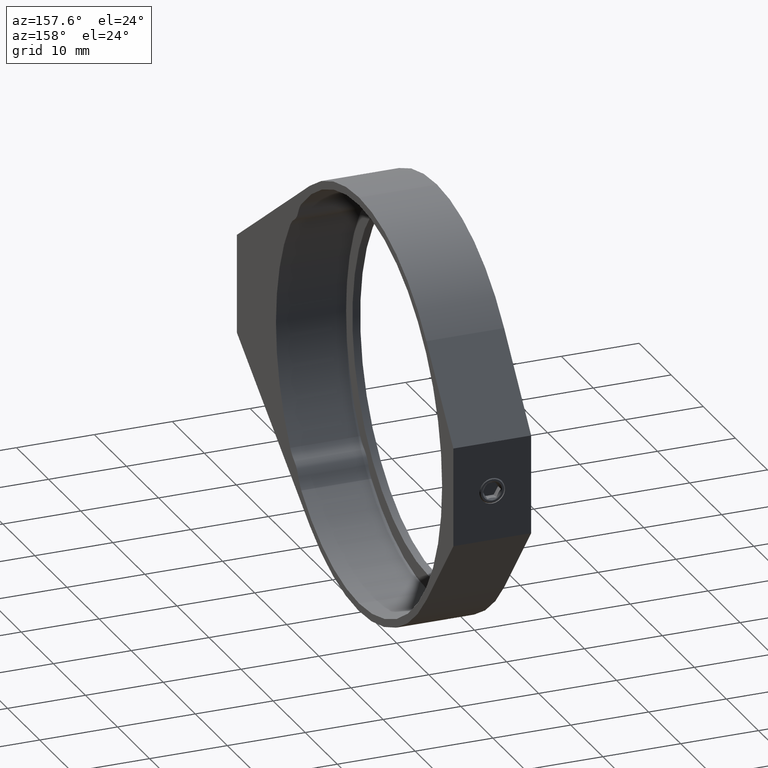
[diagram: clean part render]
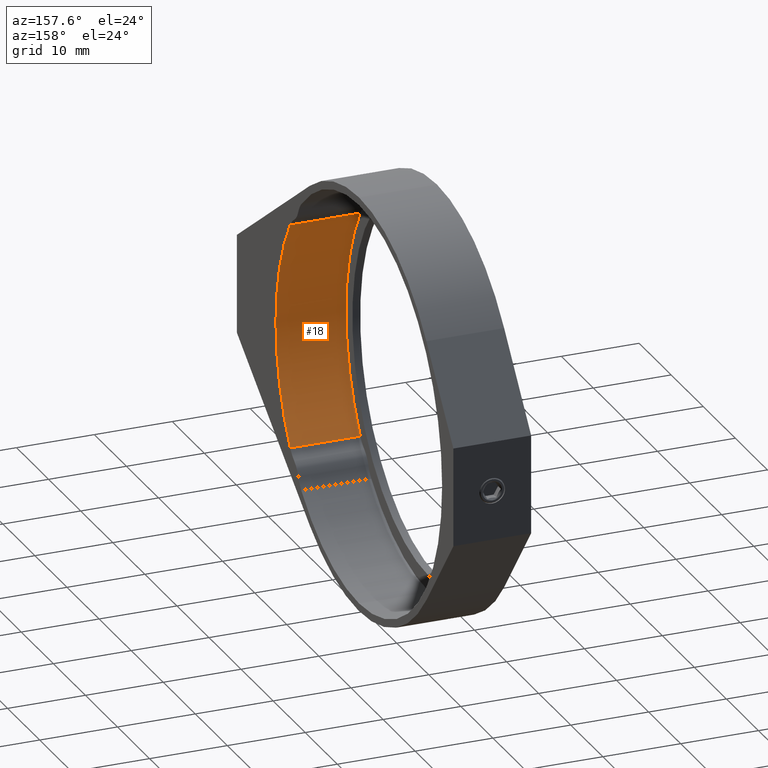
[diagram: same view with one face highlighted and labeled with its STEP entity id]
A machine part, auxiliary view. The second image highlights one B-rep face of the part: STEP entity #18.
In plain terms, the highlighted cylindrical surface (partial cylindrical patch) has radius 25.9 mm, axis along (1, -0, -0).
Its self-contained STEP definition (entity closure, byte-faithful):
#18 = ADVANCED_FACE ( 'NONE', ( #683 ), #599, .F. ) ;
#28 = VECTOR ( 'NONE', #172, 1000.000000000000000 ) ;
#29 = CIRCLE ( 'NONE', #522, 25.90000000000000568 ) ;
#88 = VERTEX_POINT ( 'NONE', #781 ) ;
#103 = CARTESIAN_POINT ( 'NONE',  ( -86.15498967708690259, 2.372471910112824212, 67.49999999999998579 ) ) ;
#123 = ORIENTED_EDGE ( 'NONE', *, *, #330, .T. ) ;
#172 = DIRECTION ( 'NONE',  ( 1.000000000000000000, -0.0000000000000000000, -0.0000000000000000000 ) ) ;
#189 = DIRECTION ( 'NONE',  ( 0.0000000000000000000, 0.0000000000000000000, -1.000000000000000000 ) ) ;
#207 = CARTESIAN_POINT ( 'NONE',  ( -8.303370786516859781, -19.09241679163501360, 53.00625814285425008 ) ) ;
#330 = EDGE_CURVE ( 'NONE', #1150, #88, #515, .T. ) ;
#377 = VECTOR ( 'NONE', #1461, 1000.000000000000000 ) ;
#515 = LINE ( 'NONE', #979, #377 ) ;
#522 = AXIS2_PLACEMENT_3D ( 'NONE', #730, #1349, #1198 ) ;
#549 = ORIENTED_EDGE ( 'NONE', *, *, #991, .T. ) ;
#550 = VERTEX_POINT ( 'NONE', #1169 ) ;
#575 = DIRECTION ( 'NONE',  ( 1.000000000000000000, -0.0000000000000000000, -0.0000000000000000000 ) ) ;
#599 = CYLINDRICAL_SURFACE ( 'NONE', #1229, 25.90000000000000568 ) ;
#654 = CARTESIAN_POINT ( 'NONE',  ( -8.303370786516859781, 2.372471910112824212, 67.49999999999998579 ) ) ;
#683 = FACE_OUTER_BOUND ( 'NONE', #736, .T. ) ;
#730 = CARTESIAN_POINT ( 'NONE',  ( -17.30337078651686511, 2.372471910112824212, 67.49999999999998579 ) ) ;
#736 = EDGE_LOOP ( 'NONE', ( #930, #123, #549, #1059 ) ) ;
#747 = EDGE_CURVE ( 'NONE', #550, #1414, #1189, .T. ) ;
#781 = CARTESIAN_POINT ( 'NONE',  ( -17.30337078651686511, -19.09241679163501360, 53.00625814285425008 ) ) ;
#854 = CARTESIAN_POINT ( 'NONE',  ( -8.303370786516859781, -19.09241679163502781, 81.99374185714570729 ) ) ;
#868 = AXIS2_PLACEMENT_3D ( 'NONE', #654, #883, #189 ) ;
#883 = DIRECTION ( 'NONE',  ( 1.000000000000000000, -0.0000000000000000000, 0.0000000000000000000 ) ) ;
#930 = ORIENTED_EDGE ( 'NONE', *, *, #1531, .T. ) ;
#979 = CARTESIAN_POINT ( 'NONE',  ( -86.15498967708690259, -19.09241679163501360, 53.00625814285425008 ) ) ;
#991 = EDGE_CURVE ( 'NONE', #88, #550, #29, .T. ) ;
#1039 = DIRECTION ( 'NONE',  ( 0.0000000000000000000, 0.0000000000000000000, -1.000000000000000000 ) ) ;
#1059 = ORIENTED_EDGE ( 'NONE', *, *, #747, .T. ) ;
#1150 = VERTEX_POINT ( 'NONE', #207 ) ;
#1169 = CARTESIAN_POINT ( 'NONE',  ( -17.30337078651686511, -19.09241679163502781, 81.99374185714570729 ) ) ;
#1189 = LINE ( 'NONE', #1227, #28 ) ;
#1198 = DIRECTION ( 'NONE',  ( 0.0000000000000000000, 8.874550601039647974E-16, -1.000000000000000000 ) ) ;
#1227 = CARTESIAN_POINT ( 'NONE',  ( -86.15498967708690259, -19.09241679163502781, 81.99374185714570729 ) ) ;
#1229 = AXIS2_PLACEMENT_3D ( 'NONE', #103, #575, #1039 ) ;
#1349 = DIRECTION ( 'NONE',  ( -1.000000000000000000, -0.0000000000000000000, -0.0000000000000000000 ) ) ;
#1414 = VERTEX_POINT ( 'NONE', #854 ) ;
#1461 = DIRECTION ( 'NONE',  ( -1.000000000000000000, 0.0000000000000000000, 0.0000000000000000000 ) ) ;
#1490 = CIRCLE ( 'NONE', #868, 25.90000000000000568 ) ;
#1531 = EDGE_CURVE ( 'NONE', #1414, #1150, #1490, .T. ) ;